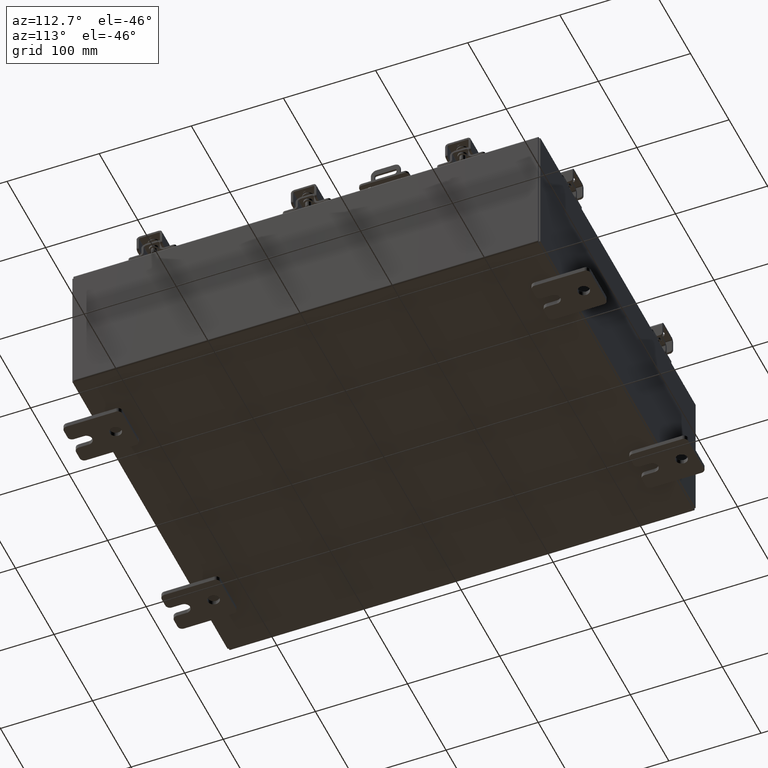
[diagram: clean part render]
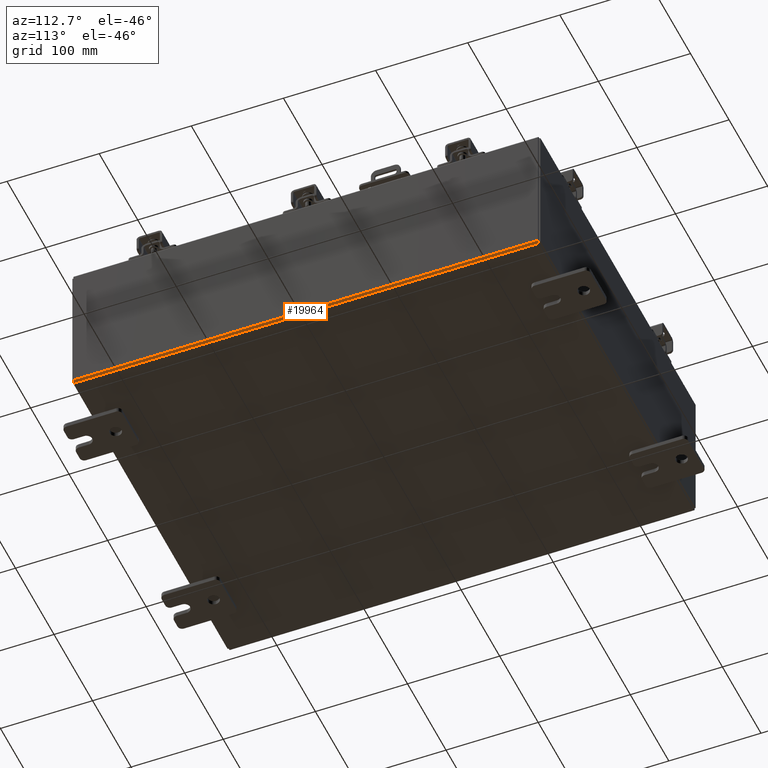
[diagram: same view with one face highlighted and labeled with its STEP entity id]
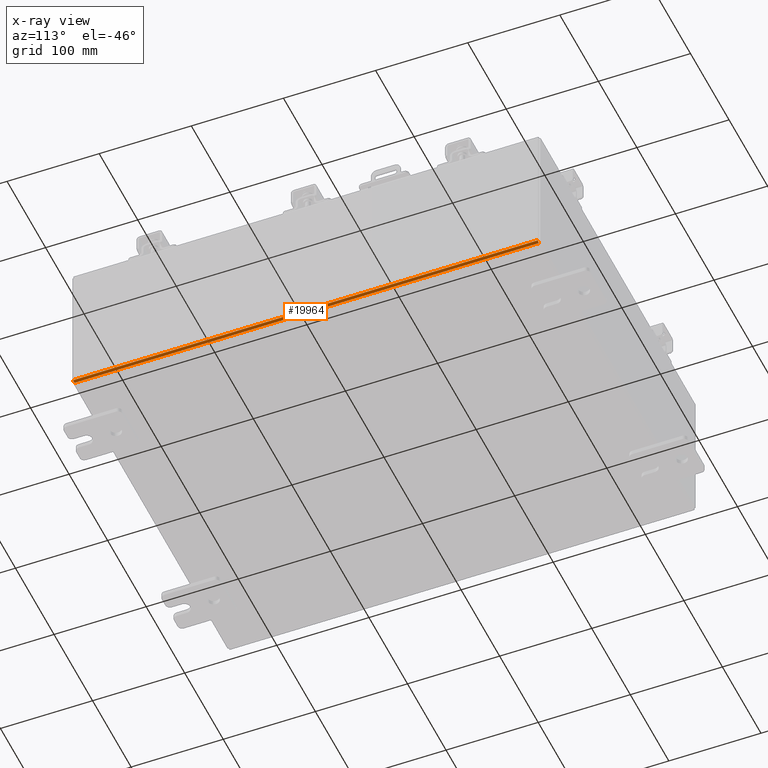
[diagram: x-ray of the same camera — body ghosted, the highlighted face saturated]
A machine part, auxiliary view. The second image highlights one B-rep face of the part: STEP entity #19964.
The next image is the same camera in x-ray: the body ghosted, the highlighted face saturated — about 0% of this face is hidden behind the body in this view.
In plain terms, the highlighted cylindrical surface (edge-blend (fillet) strip) has radius 2.2276 mm, axis along (0, 1, 0).
Its self-contained STEP definition (entity closure, byte-faithful):
#257 = CARTESIAN_POINT ( 'NONE',  ( 7.912300000000001900, -9.925300000000001800, -0.07470000000000000300 ) ) ;
#1658 = VECTOR ( 'NONE', #20322, 39.37007874015748100 ) ;
#1915 = AXIS2_PLACEMENT_3D ( 'NONE', #6287, #18526, #8021 ) ;
#2889 = DIRECTION ( 'NONE',  ( 0.0000000000000000000, 1.000000000000000000, 0.0000000000000000000 ) ) ;
#4290 = VECTOR ( 'NONE', #19159, 39.37007874015748100 ) ;
#4835 = LINE ( 'NONE', #17425, #4290 ) ;
#4858 = CARTESIAN_POINT ( 'NONE',  ( 7.912300000000001900, 9.925299999999996500, -0.07469999999999994700 ) ) ;
#5035 = CARTESIAN_POINT ( 'NONE',  ( 8.000000000000001800, 9.925299999999996500, 0.01299999999999984700 ) ) ;
#5146 = CYLINDRICAL_SURFACE ( 'NONE', #11359, 0.08770000000000026400 ) ;
#5633 = DIRECTION ( 'NONE',  ( -0.0000000000000000000, -1.000000000000000000, -0.0000000000000000000 ) ) ;
#5666 = FACE_OUTER_BOUND ( 'NONE', #12329, .T. ) ;
#6287 = CARTESIAN_POINT ( 'NONE',  ( 7.912300000000001900, 9.925299999999996500, 0.01300000000000015200 ) ) ;
#6766 = VERTEX_POINT ( 'NONE', #5035 ) ;
#8021 = DIRECTION ( 'NONE',  ( 0.0000000000000000000, 0.0000000000000000000, 1.000000000000000000 ) ) ;
#8817 = ORIENTED_EDGE ( 'NONE', *, *, #9217, .F. ) ;
#8904 = CIRCLE ( 'NONE', #10390, 0.08770000000000009700 ) ;
#9217 = EDGE_CURVE ( 'NONE', #6766, #9363, #13577, .T. ) ;
#9363 = VERTEX_POINT ( 'NONE', #4858 ) ;
#9727 = CARTESIAN_POINT ( 'NONE',  ( 7.912300000000001900, 9.925299999999998200, 0.01300000000000015200 ) ) ;
#9815 = CARTESIAN_POINT ( 'NONE',  ( 7.912300000000001900, 9.925299999999998200, -0.07469999999999994700 ) ) ;
#10390 = AXIS2_PLACEMENT_3D ( 'NONE', #16133, #5633, #17893 ) ;
#10529 = CARTESIAN_POINT ( 'NONE',  ( 8.000000000000001800, -9.925300000000001800, 0.01299999999999984500 ) ) ;
#11359 = AXIS2_PLACEMENT_3D ( 'NONE', #9727, #2889, #13275 ) ;
#12329 = EDGE_LOOP ( 'NONE', ( #13683, #8817, #14973, #14508 ) ) ;
#13275 = DIRECTION ( 'NONE',  ( 1.000000000000000000, 0.0000000000000000000, -3.504366012397134600E-015 ) ) ;
#13577 = CIRCLE ( 'NONE', #1915, 0.08770000000000009700 ) ;
#13683 = ORIENTED_EDGE ( 'NONE', *, *, #19997, .F. ) ;
#14065 = EDGE_CURVE ( 'NONE', #15315, #19019, #8904, .T. ) ;
#14508 = ORIENTED_EDGE ( 'NONE', *, *, #14065, .F. ) ;
#14557 = EDGE_CURVE ( 'NONE', #6766, #19019, #4835, .T. ) ;
#14973 = ORIENTED_EDGE ( 'NONE', *, *, #14557, .T. ) ;
#15315 = VERTEX_POINT ( 'NONE', #257 ) ;
#16133 = CARTESIAN_POINT ( 'NONE',  ( 7.912300000000001900, -9.925300000000001800, 0.01300000000000015200 ) ) ;
#17425 = CARTESIAN_POINT ( 'NONE',  ( 8.000000000000001800, -9.925300000000001800, 0.01299999999999984700 ) ) ;
#17893 = DIRECTION ( 'NONE',  ( 0.0000000000000000000, 0.0000000000000000000, 1.000000000000000000 ) ) ;
#18526 = DIRECTION ( 'NONE',  ( 0.0000000000000000000, 1.000000000000000000, 0.0000000000000000000 ) ) ;
#19019 = VERTEX_POINT ( 'NONE', #10529 ) ;
#19159 = DIRECTION ( 'NONE',  ( -0.0000000000000000000, -1.000000000000000000, -0.0000000000000000000 ) ) ;
#19613 = LINE ( 'NONE', #9815, #1658 ) ;
#19964 = ADVANCED_FACE ( 'NONE', ( #5666 ), #5146, .T. ) ;
#19997 = EDGE_CURVE ( 'NONE', #9363, #15315, #19613, .T. ) ;
#20322 = DIRECTION ( 'NONE',  ( -0.0000000000000000000, -1.000000000000000000, -0.0000000000000000000 ) ) ;